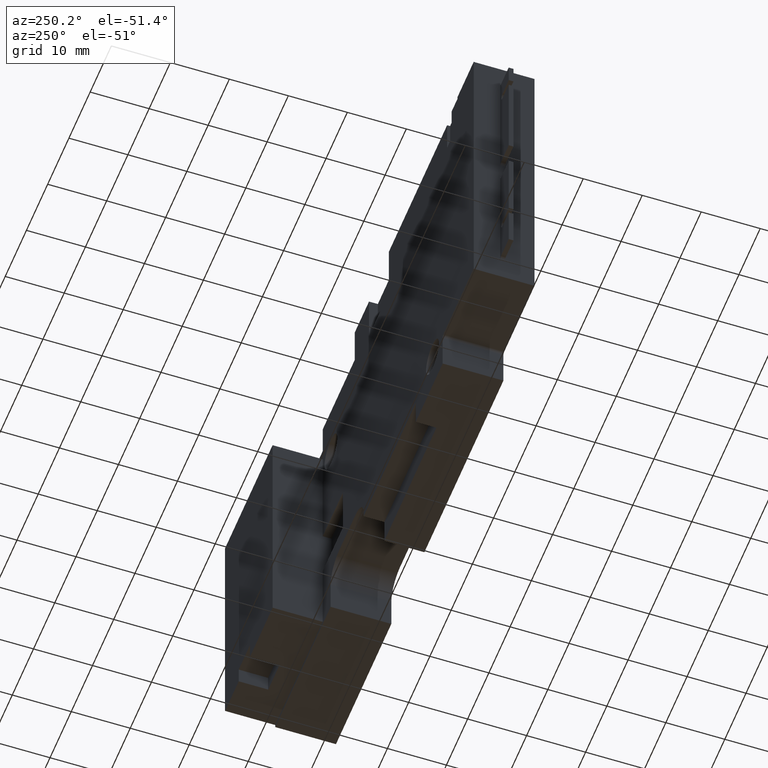
[diagram: clean part render]
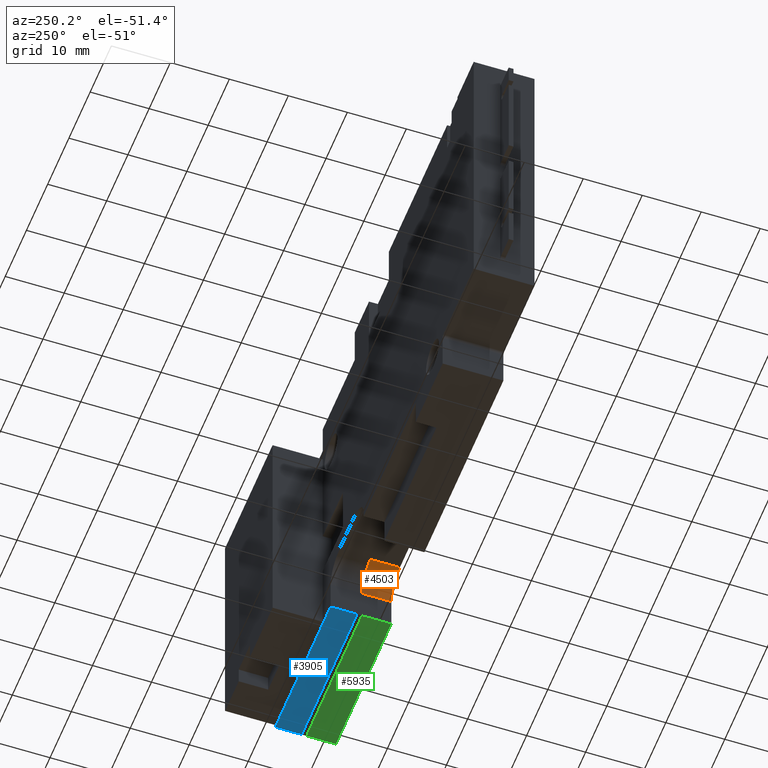
[diagram: same view with three faces highlighted in distinct colors, each labeled with its STEP entity id]
A machine part, auxiliary view with three faces highlighted in distinct colors.
Their STEP definitions:

[orange] entity #4503 — the highlighted cylindrical surface (edge-blend (fillet) strip) has radius 4 mm, axis along (0, 1, 0).
#63 = DIRECTION ( 'NONE',  ( 0.000000000000000000, 1.000000000000000000, 0.000000000000000000 ) ) ;
#762 = VERTEX_POINT ( 'NONE', #22522 ) ;
#820 = DIRECTION ( 'NONE',  ( 0.000000000000000000, 0.000000000000000000, -1.000000000000000000 ) ) ;
#2513 = DIRECTION ( 'NONE',  ( 0.000000000000000000, 1.000000000000000000, 0.000000000000000000 ) ) ;
#4012 = CARTESIAN_POINT ( 'NONE',  ( 23.17835815694024859, -118.6007172433253913, -21.82164184305287336 ) ) ;
#4186 = CARTESIAN_POINT ( 'NONE',  ( 23.17835815693734958, -2.449999999998869527, -25.82164184305287336 ) ) ;
#4503 = ADVANCED_FACE ( 'NONE', ( #20881 ), #16802, .F. ) ;
#4609 = ORIENTED_EDGE ( 'NONE', *, *, #23591, .T. ) ;
#4710 = CARTESIAN_POINT ( 'NONE',  ( 23.17835815693734958, 2.550000000000960387, -25.82164184305287336 ) ) ;
#4973 = VERTEX_POINT ( 'NONE', #11510 ) ;
#5269 = EDGE_CURVE ( 'NONE', #6387, #4973, #12149, .T. ) ;
#6387 = VERTEX_POINT ( 'NONE', #9377 ) ;
#7118 = DIRECTION ( 'NONE',  ( -0.000000000000000000, -1.000000000000000000, -0.000000000000000000 ) ) ;
#7377 = VECTOR ( 'NONE', #7986, 1000.000000000000000 ) ;
#7856 = VECTOR ( 'NONE', #2513, 1000.000000000000000 ) ;
#7986 = DIRECTION ( 'NONE',  ( 0.000000000000000000, 1.000000000000000000, 0.000000000000000000 ) ) ;
#8198 = ORIENTED_EDGE ( 'NONE', *, *, #22161, .F. ) ;
#8667 = AXIS2_PLACEMENT_3D ( 'NONE', #19199, #63, #25597 ) ;
#9377 = CARTESIAN_POINT ( 'NONE',  ( 23.17835815694024859, -2.449999999998880629, -21.82164184307566757 ) ) ;
#10182 = VERTEX_POINT ( 'NONE', #17287 ) ;
#10670 = DIRECTION ( 'NONE',  ( 1.000000000000000000, 6.938893903907228378E-15, 0.000000000000000000 ) ) ;
#10887 = LINE ( 'NONE', #23310, #7856 ) ;
#11510 = CARTESIAN_POINT ( 'NONE',  ( 23.17835815694024859, 2.550000000000960387, -21.82164184305287336 ) ) ;
#12149 = LINE ( 'NONE', #4012, #7377 ) ;
#15120 = DIRECTION ( 'NONE',  ( 6.982658610649884917E-15, -1.000000000000000000, -2.466210728113322931E-30 ) ) ;
#16802 = CYLINDRICAL_SURFACE ( 'NONE', #8667, 4.000000000000000000 ) ;
#17069 = EDGE_CURVE ( 'NONE', #10182, #762, #10887, .T. ) ;
#17287 = CARTESIAN_POINT ( 'NONE',  ( 27.17835815693734958, -2.449999999998841993, -25.82164184305287336 ) ) ;
#18701 = ORIENTED_EDGE ( 'NONE', *, *, #17069, .F. ) ;
#19199 = CARTESIAN_POINT ( 'NONE',  ( 23.17835815693734958, -118.6007172433253913, -25.82164184305287336 ) ) ;
#19259 = EDGE_LOOP ( 'NONE', ( #18701, #4609, #19411, #8198 ) ) ;
#19411 = ORIENTED_EDGE ( 'NONE', *, *, #5269, .T. ) ;
#20881 = FACE_OUTER_BOUND ( 'NONE', #19259, .T. ) ;
#20917 = AXIS2_PLACEMENT_3D ( 'NONE', #4710, #7118, #820 ) ;
#22161 = EDGE_CURVE ( 'NONE', #762, #4973, #22647, .T. ) ;
#22522 = CARTESIAN_POINT ( 'NONE',  ( 27.17835815696634327, 2.550000000000960387, -25.82164184303792354 ) ) ;
#22647 = CIRCLE ( 'NONE', #20917, 4.000000000000000000 ) ;
#22668 = CIRCLE ( 'NONE', #27145, 4.000000000000000000 ) ;
#23310 = CARTESIAN_POINT ( 'NONE',  ( 27.17835815696634327, -118.6007172433253913, -25.82164184303792354 ) ) ;
#23591 = EDGE_CURVE ( 'NONE', #10182, #6387, #22668, .T. ) ;
#25597 = DIRECTION ( 'NONE',  ( 0.000000000000000000, 0.000000000000000000, 1.000000000000000000 ) ) ;
#27145 = AXIS2_PLACEMENT_3D ( 'NONE', #4186, #15120, #10670 ) ;

[blue] entity #3905 — the highlighted planar face has unit normal (-0, 0, -1).
#1492 = CARTESIAN_POINT ( 'NONE',  ( 53.25872753246585489, 131.5007172433329004, -31.52000000000043656 ) ) ;
#1927 = AXIS2_PLACEMENT_3D ( 'NONE', #11442, #22181, #7264 ) ;
#1949 = VECTOR ( 'NONE', #19742, 1000.000000000000000 ) ;
#2043 = VERTEX_POINT ( 'NONE', #13176 ) ;
#3905 = ADVANCED_FACE ( 'NONE', ( #17614 ), #11181, .T. ) ;
#4424 = CARTESIAN_POINT ( 'NONE',  ( -400000.0000000000000, 7.850000000000967759, -31.51999999988674972 ) ) ;
#4463 = CARTESIAN_POINT ( 'NONE',  ( 27.17835815695934798, 131.5007172433329004, -31.51999999999317836 ) ) ;
#5166 = ORIENTED_EDGE ( 'NONE', *, *, #26520, .T. ) ;
#5789 = CARTESIAN_POINT ( 'NONE',  ( -400000.0000000000000, 3.350000000000960654, -31.51999999988674972 ) ) ;
#7264 = DIRECTION ( 'NONE',  ( -1.000000000000000000, 0.000000000000000000, 2.660581145917549881E-16 ) ) ;
#8377 = DIRECTION ( 'NONE',  ( 1.000000000000000000, 0.000000000000000000, -2.660581145917549881E-16 ) ) ;
#8924 = CARTESIAN_POINT ( 'NONE',  ( 53.25872753246585489, 3.350000000000960654, -31.52000000000043656 ) ) ;
#9742 = EDGE_LOOP ( 'NONE', ( #22629, #18574, #5166, #11693 ) ) ;
#11181 = PLANE ( 'NONE',  #1927 ) ;
#11433 = VECTOR ( 'NONE', #26917, 1000.000000000000000 ) ;
#11442 = CARTESIAN_POINT ( 'NONE',  ( -400000.0000000000000, 131.5007172433329004, -31.51999999988674972 ) ) ;
#11693 = ORIENTED_EDGE ( 'NONE', *, *, #21093, .F. ) ;
#11808 = EDGE_CURVE ( 'NONE', #22660, #11910, #25834, .T. ) ;
#11812 = DIRECTION ( 'NONE',  ( 1.000000000000000000, 0.000000000000000000, -2.660581145917549881E-16 ) ) ;
#11910 = VERTEX_POINT ( 'NONE', #17597 ) ;
#12541 = EDGE_CURVE ( 'NONE', #22660, #2043, #21275, .T. ) ;
#12557 = VECTOR ( 'NONE', #8377, 1000.000000000000000 ) ;
#13176 = CARTESIAN_POINT ( 'NONE',  ( 27.17835815695934798, 3.350000000000960654, -31.51999999999317836 ) ) ;
#14300 = LINE ( 'NONE', #5789, #19993 ) ;
#14527 = CARTESIAN_POINT ( 'NONE',  ( 27.17835815696634683, 7.850000000000967759, -31.52000000000043656 ) ) ;
#17597 = CARTESIAN_POINT ( 'NONE',  ( 53.25872753246585489, 7.850000000000967759, -31.51999999999318547 ) ) ;
#17614 = FACE_OUTER_BOUND ( 'NONE', #9742, .T. ) ;
#18574 = ORIENTED_EDGE ( 'NONE', *, *, #11808, .T. ) ;
#19742 = DIRECTION ( 'NONE',  ( -0.000000000000000000, -1.000000000000000000, -0.000000000000000000 ) ) ;
#19993 = VECTOR ( 'NONE', #11812, 1000.000000000000000 ) ;
#20659 = LINE ( 'NONE', #1492, #11433 ) ;
#21093 = EDGE_CURVE ( 'NONE', #2043, #23396, #14300, .T. ) ;
#21275 = LINE ( 'NONE', #4463, #1949 ) ;
#22181 = DIRECTION ( 'NONE',  ( -2.660581145917549881E-16, 0.000000000000000000, -1.000000000000000000 ) ) ;
#22629 = ORIENTED_EDGE ( 'NONE', *, *, #12541, .F. ) ;
#22660 = VERTEX_POINT ( 'NONE', #14527 ) ;
#23396 = VERTEX_POINT ( 'NONE', #8924 ) ;
#25834 = LINE ( 'NONE', #4424, #12557 ) ;
#26520 = EDGE_CURVE ( 'NONE', #11910, #23396, #20659, .T. ) ;
#26917 = DIRECTION ( 'NONE',  ( -0.000000000000000000, -1.000000000000000000, -0.000000000000000000 ) ) ;

[green] entity #5935 — the highlighted planar face has unit normal (0, -0, 1).
#88 = CARTESIAN_POINT ( 'NONE',  ( 399999.9999999998836, -2.449999997205978719, -31.52000000011412340 ) ) ;
#498 = VECTOR ( 'NONE', #3249, 1000.000000000000000 ) ;
#959 = DIRECTION ( 'NONE',  ( 0.000000000000000000, 1.000000000000000000, 0.000000000000000000 ) ) ;
#1372 = CARTESIAN_POINT ( 'NONE',  ( 399999.9999999998836, -118.6007172433253913, -31.52000000011412340 ) ) ;
#1570 = EDGE_CURVE ( 'NONE', #4939, #5960, #21352, .T. ) ;
#2193 = CARTESIAN_POINT ( 'NONE',  ( 53.25872753246585489, -118.6007172433253913, -31.52000000000043656 ) ) ;
#2325 = EDGE_LOOP ( 'NONE', ( #17115, #3201, #10074, #17099 ) ) ;
#2981 = EDGE_CURVE ( 'NONE', #21947, #4939, #3669, .T. ) ;
#3201 = ORIENTED_EDGE ( 'NONE', *, *, #18704, .T. ) ;
#3249 = DIRECTION ( 'NONE',  ( 1.000000000000000000, 0.000000000000000000, -2.660581145917549881E-16 ) ) ;
#3669 = LINE ( 'NONE', #88, #7671 ) ;
#3798 = CARTESIAN_POINT ( 'NONE',  ( 399999.9999999998836, 2.550000000000960387, -31.52000000011412340 ) ) ;
#4939 = VERTEX_POINT ( 'NONE', #20199 ) ;
#5674 = FACE_OUTER_BOUND ( 'NONE', #2325, .T. ) ;
#5935 = ADVANCED_FACE ( 'NONE', ( #5674 ), #11830, .F. ) ;
#5960 = VERTEX_POINT ( 'NONE', #18133 ) ;
#7671 = VECTOR ( 'NONE', #25064, 1000.000000000000000 ) ;
#8173 = VERTEX_POINT ( 'NONE', #9618 ) ;
#8791 = EDGE_CURVE ( 'NONE', #8173, #5960, #22959, .T. ) ;
#9618 = CARTESIAN_POINT ( 'NONE',  ( 27.17835815695934798, 2.550000000000960387, -31.52000000000770896 ) ) ;
#10074 = ORIENTED_EDGE ( 'NONE', *, *, #8791, .T. ) ;
#11830 = PLANE ( 'NONE',  #27553 ) ;
#11853 = CARTESIAN_POINT ( 'NONE',  ( 27.17835815696634683, -2.449999999998841993, -31.52000000000043656 ) ) ;
#11966 = LINE ( 'NONE', #26784, #26839 ) ;
#15253 = VECTOR ( 'NONE', #19252, 1000.000000000000000 ) ;
#17099 = ORIENTED_EDGE ( 'NONE', *, *, #1570, .F. ) ;
#17115 = ORIENTED_EDGE ( 'NONE', *, *, #2981, .F. ) ;
#18133 = CARTESIAN_POINT ( 'NONE',  ( 53.25872753246585489, 2.550000000000960387, -31.52000000000043656 ) ) ;
#18704 = EDGE_CURVE ( 'NONE', #21947, #8173, #11966, .T. ) ;
#19252 = DIRECTION ( 'NONE',  ( 0.000000000000000000, 1.000000000000000000, 0.000000000000000000 ) ) ;
#20199 = CARTESIAN_POINT ( 'NONE',  ( 53.25872753246585489, -2.449999999998670130, -31.52000000000771607 ) ) ;
#21352 = LINE ( 'NONE', #2193, #15253 ) ;
#21947 = VERTEX_POINT ( 'NONE', #11853 ) ;
#22959 = LINE ( 'NONE', #3798, #498 ) ;
#24234 = DIRECTION ( 'NONE',  ( 1.000000000000000000, 0.000000000000000000, -2.660581145917549881E-16 ) ) ;
#25064 = DIRECTION ( 'NONE',  ( 1.000000000000000000, 6.982658610649885705E-15, -2.660581145917549881E-16 ) ) ;
#26784 = CARTESIAN_POINT ( 'NONE',  ( 27.17835815695934798, -118.6007172433253913, -31.52000000000770896 ) ) ;
#26839 = VECTOR ( 'NONE', #959, 1000.000000000000000 ) ;
#27208 = DIRECTION ( 'NONE',  ( 2.660581145917549881E-16, -0.000000000000000000, 1.000000000000000000 ) ) ;
#27553 = AXIS2_PLACEMENT_3D ( 'NONE', #1372, #27208, #24234 ) ;